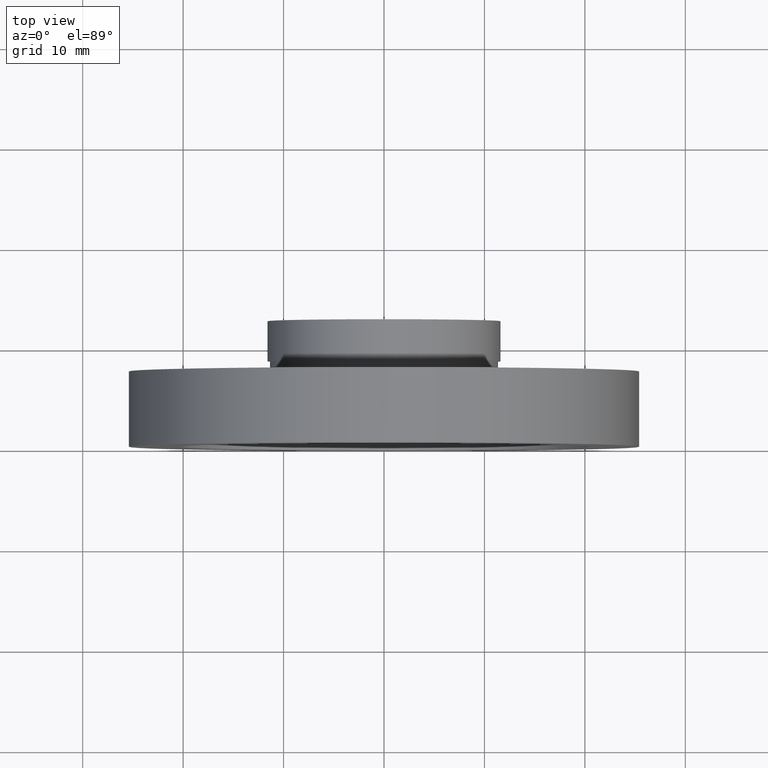
[diagram: clean part render]
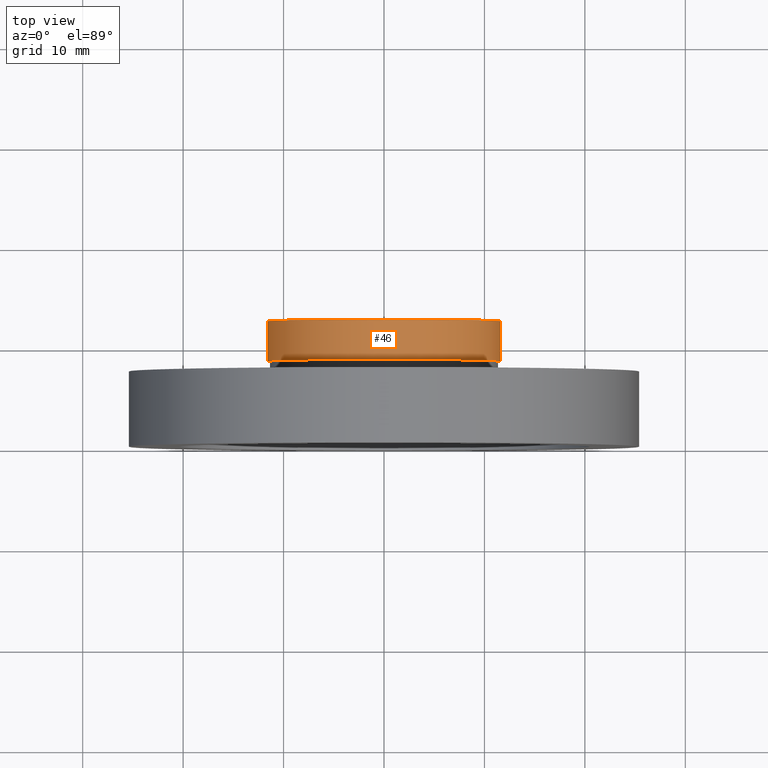
[diagram: same view with one face highlighted and labeled with its STEP entity id]
A machine part, top view. The second image highlights one B-rep face of the part: STEP entity #46.
In plain terms, the highlighted cylindrical surface (partial cylindrical patch) has radius 11.6 mm, axis along (-0, 1, -0).
Its self-contained STEP definition (entity closure, byte-faithful):
#23 = FACE_OUTER_BOUND ( 'NONE', #364, .T. ) ;
#27 = CARTESIAN_POINT ( 'NONE',  ( 11.60000000000000000, 16.88601823708207700, 1.420590287010929500E-015 ) ) ;
#46 = ADVANCED_FACE ( 'NONE', ( #23 ), #413, .T. ) ;
#69 = ORIENTED_EDGE ( 'NONE', *, *, #146, .T. ) ;
#89 = EDGE_CURVE ( 'NONE', #420, #311, #403, .T. ) ;
#106 = DIRECTION ( 'NONE',  ( -1.224646799147351000E-016, 1.000000000000000000, -0.0000000000000000000 ) ) ;
#111 = DIRECTION ( 'NONE',  ( -1.000000000000000000, -1.495451272393799300E-016, 0.0000000000000000000 ) ) ;
#113 = DIRECTION ( 'NONE',  ( -1.224646799147351000E-016, 1.000000000000000000, -0.0000000000000000000 ) ) ;
#130 = DIRECTION ( 'NONE',  ( -1.224646799147351000E-016, 1.000000000000000000, -0.0000000000000000000 ) ) ;
#146 = EDGE_CURVE ( 'NONE', #311, #623, #386, .T. ) ;
#148 = CARTESIAN_POINT ( 'NONE',  ( 0.0000000000000000000, 16.88601823708207700, 0.0000000000000000000 ) ) ;
#154 = CIRCLE ( 'NONE', #409, 11.60000000000000000 ) ;
#157 = ORIENTED_EDGE ( 'NONE', *, *, #508, .F. ) ;
#211 = CARTESIAN_POINT ( 'NONE',  ( -11.60000000000000000, 12.49999999999999500, 0.0000000000000000000 ) ) ;
#262 = CARTESIAN_POINT ( 'NONE',  ( -11.60000000000000000, 16.88601823708207700, 0.0000000000000000000 ) ) ;
#265 = CARTESIAN_POINT ( 'NONE',  ( 5.371323195044474300E-016, 12.49999999999999600, 0.0000000000000000000 ) ) ;
#282 = DIRECTION ( 'NONE',  ( -1.000000000000000000, 0.0000000000000000000, 0.0000000000000000000 ) ) ;
#303 = DIRECTION ( 'NONE',  ( -1.224646799147351000E-016, 1.000000000000000000, -0.0000000000000000000 ) ) ;
#311 = VERTEX_POINT ( 'NONE', #468 ) ;
#330 = DIRECTION ( 'NONE',  ( -1.000000000000000000, -1.495451272393799500E-016, 0.0000000000000000000 ) ) ;
#359 = DIRECTION ( 'NONE',  ( -1.224646799147351000E-016, 1.000000000000000000, -0.0000000000000000000 ) ) ;
#364 = EDGE_LOOP ( 'NONE', ( #539, #69, #157, #453 ) ) ;
#386 = LINE ( 'NONE', #27, #393 ) ;
#393 = VECTOR ( 'NONE', #359, 1000.000000000000000 ) ;
#396 = VERTEX_POINT ( 'NONE', #211 ) ;
#403 = CIRCLE ( 'NONE', #611, 11.59999999999999800 ) ;
#409 = AXIS2_PLACEMENT_3D ( 'NONE', #265, #130, #111 ) ;
#413 = CYLINDRICAL_SURFACE ( 'NONE', #543, 11.60000000000000000 ) ;
#420 = VERTEX_POINT ( 'NONE', #536 ) ;
#453 = ORIENTED_EDGE ( 'NONE', *, *, #577, .F. ) ;
#461 = LINE ( 'NONE', #262, #493 ) ;
#468 = CARTESIAN_POINT ( 'NONE',  ( 11.60000000000000000, 8.500000000000000000, 1.420590287010929500E-015 ) ) ;
#493 = VECTOR ( 'NONE', #113, 1000.000000000000000 ) ;
#508 = EDGE_CURVE ( 'NONE', #396, #623, #154, .T. ) ;
#536 = CARTESIAN_POINT ( 'NONE',  ( -11.59999999999999600, 8.499999999999996400, 0.0000000000000000000 ) ) ;
#539 = ORIENTED_EDGE ( 'NONE', *, *, #89, .T. ) ;
#543 = AXIS2_PLACEMENT_3D ( 'NONE', #148, #106, #282 ) ;
#558 = CARTESIAN_POINT ( 'NONE',  ( 1.026991039163387700E-015, 8.499999999999998200, 0.0000000000000000000 ) ) ;
#570 = CARTESIAN_POINT ( 'NONE',  ( 11.60000000000000000, 12.49999999999999800, 1.420590287010929500E-015 ) ) ;
#577 = EDGE_CURVE ( 'NONE', #420, #396, #461, .T. ) ;
#611 = AXIS2_PLACEMENT_3D ( 'NONE', #558, #303, #330 ) ;
#623 = VERTEX_POINT ( 'NONE', #570 ) ;